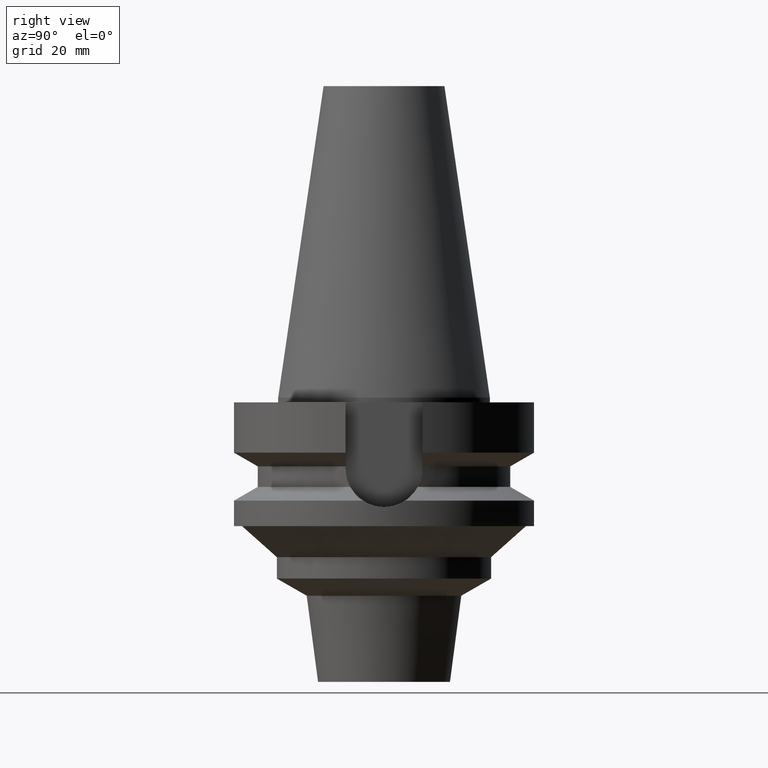
[diagram: clean part render]
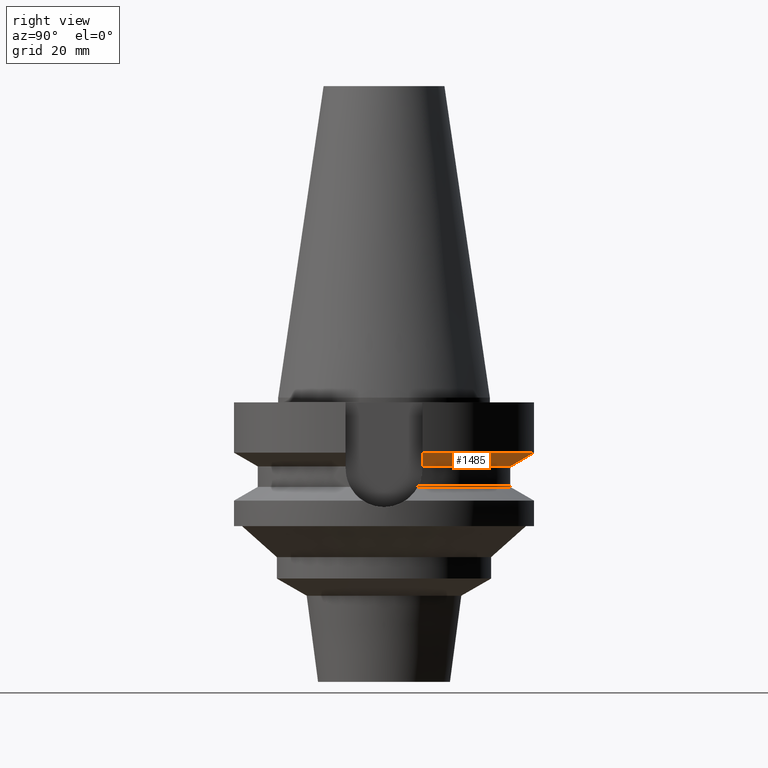
[diagram: same view with one face highlighted and labeled with its STEP entity id]
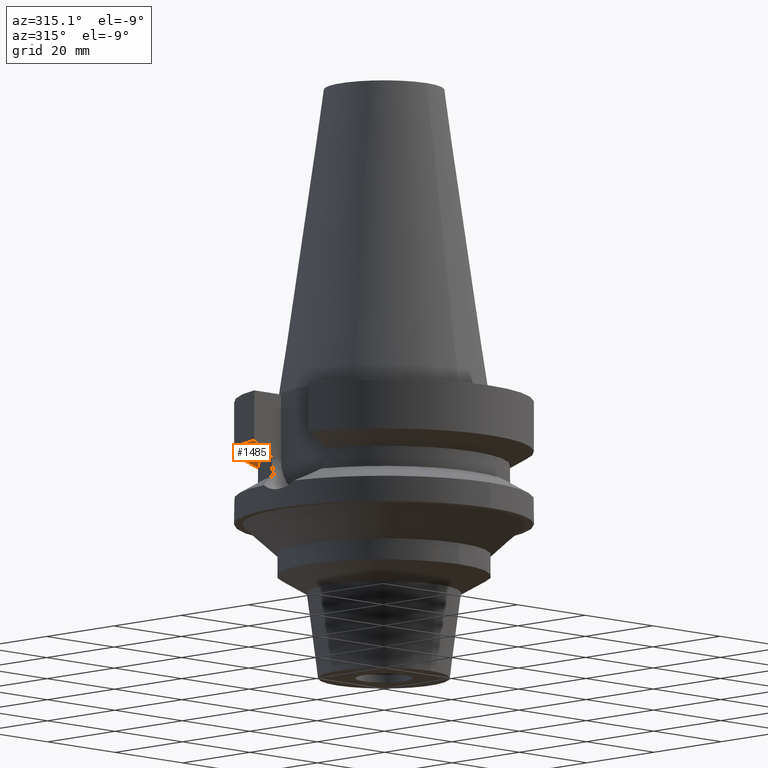
[diagram: same view with one face highlighted and labeled with its STEP entity id]
A machine part, right view. The second image highlights one B-rep face of the part: STEP entity #1485.
A second angle (auxiliary view) of the same face is appended — the face is thin or edge-on in the first view.
In plain terms, the highlighted conical surface has half-angle 60 deg.
Its self-contained STEP definition (entity closure, byte-faithful):
#344=CARTESIAN_POINT('',(3.045402291707E1,8.049999265011E0,-1.156551227255E1));
#345=CARTESIAN_POINT('',(2.987645782194E1,8.049999265011E0,-1.188789698077E1));
#346=CARTESIAN_POINT('',(2.872091079178E1,8.049999727161E0,-1.253193635376E1));
#347=CARTESIAN_POINT('',(2.698538552370E1,8.050002057420E0,-1.349404143995E1));
#348=CARTESIAN_POINT('',(2.582730548052E1,8.049995381246E0,-1.413348358110E1));
#349=CARTESIAN_POINT('',(2.524772414223E1,8.049995381246E0,-1.445229229194E1));
#388=CARTESIAN_POINT('',(-2.524772217128E1,8.050001562859E0,-1.445224505698E1));
#389=CARTESIAN_POINT('',(-2.582727373616E1,8.050001562859E0,-1.413345279819E1));
#390=CARTESIAN_POINT('',(-2.698547332388E1,8.049999825981E0,-1.349419099112E1));
#391=CARTESIAN_POINT('',(-2.872100077169E1,8.049998264778E0,-1.253209023092E1));
#392=CARTESIAN_POINT('',(-2.987642818392E1,8.050004164863E0,-1.188786862481E1));
#393=CARTESIAN_POINT('',(-3.045402162188E1,8.050004164863E0,-1.156546813736E1));
#398=CARTESIAN_POINT('',(0.E0,1.065333950388E-14,-1.445225699861E1));
#399=DIRECTION('',(0.E0,0.E0,-1.E0));
#400=DIRECTION('',(-9.527442516822E-1,3.037735849057E-1,0.E0));
#401=AXIS2_PLACEMENT_3D('',#398,#399,#400);
#406=CARTESIAN_POINT('',(0.E0,1.065333950388E-14,-1.445225699861E1));
#407=DIRECTION('',(0.E0,0.E0,-1.E0));
#408=DIRECTION('',(0.E0,1.E0,0.E0));
#409=AXIS2_PLACEMENT_3D('',#406,#407,#408);
#414=CARTESIAN_POINT('',(0.E0,1.065333950388E-14,-1.156550565267E1));
#415=DIRECTION('',(0.E0,0.E0,1.E0));
#416=DIRECTION('',(9.667943721520E-1,2.555555555555E-1,0.E0));
#417=AXIS2_PLACEMENT_3D('',#414,#415,#416);
#422=CARTESIAN_POINT('',(0.E0,1.065333950388E-14,-1.156550565267E1));
#423=DIRECTION('',(0.E0,0.E0,1.E0));
#424=DIRECTION('',(0.E0,1.E0,0.E0));
#425=AXIS2_PLACEMENT_3D('',#422,#423,#424);
#1140=CARTESIAN_POINT('',(-2.524772217128E1,8.050001562859E0,
-1.445224505698E1));
#1141=VERTEX_POINT('',#1140);
#1142=CARTESIAN_POINT('',(2.524772414223E1,8.049995381246E0,-1.445229229194E1));
#1143=VERTEX_POINT('',#1142);
#1144=CARTESIAN_POINT('',(0.E0,2.65E1,-1.445225699861E1));
#1145=VERTEX_POINT('',#1144);
#1176=VERTEX_POINT('',#393);
#1181=VERTEX_POINT('',#344);
#1182=CARTESIAN_POINT('',(0.E0,3.15E1,-1.156550565267E1));
#1183=VERTEX_POINT('',#1182);
#1470=CARTESIAN_POINT('',(0.E0,1.065333950388E-14,-1.300888132564E1));
#1471=DIRECTION('',(0.E0,0.E0,1.E0));
#1472=DIRECTION('',(0.E0,1.E0,0.E0));
#1473=AXIS2_PLACEMENT_3D('',#1470,#1471,#1472);
#1474=CONICAL_SURFACE('',#1473,2.9E1,6.E1);
#1475=ORIENTED_EDGE('',*,*,#1459,.F.);
#1476=ORIENTED_EDGE('',*,*,#1448,.T.);
#1477=ORIENTED_EDGE('',*,*,#1446,.T.);
#1478=ORIENTED_EDGE('',*,*,#1425,.F.);
#1480=ORIENTED_EDGE('',*,*,#1479,.T.);
#1482=ORIENTED_EDGE('',*,*,#1481,.T.);
#1483=EDGE_LOOP('',(#1475,#1476,#1477,#1478,#1480,#1482));
#1484=FACE_OUTER_BOUND('',#1483,.F.);
#350=B_SPLINE_CURVE_WITH_KNOTS('',3,(#344,#345,#346,#347,#348,#349),
.UNSPECIFIED.,.F.,.F.,(4,1,1,4),(0.E0,3.333333333333E-1,6.666666666667E-1,1.E0),
.UNSPECIFIED.);
#394=B_SPLINE_CURVE_WITH_KNOTS('',3,(#388,#389,#390,#391,#392,#393),
.UNSPECIFIED.,.F.,.F.,(4,1,1,4),(0.E0,3.333333333333E-1,6.666666666667E-1,1.E0),
.UNSPECIFIED.);
#402=CIRCLE('',#401,2.65E1);
#410=CIRCLE('',#409,2.65E1);
#418=CIRCLE('',#417,3.15E1);
#426=CIRCLE('',#425,3.15E1);
#1425=EDGE_CURVE('',#1181,#1143,#350,.T.);
#1446=EDGE_CURVE('',#1145,#1143,#410,.T.);
#1448=EDGE_CURVE('',#1141,#1145,#402,.T.);
#1459=EDGE_CURVE('',#1141,#1176,#394,.T.);
#1479=EDGE_CURVE('',#1181,#1183,#418,.T.);
#1481=EDGE_CURVE('',#1183,#1176,#426,.T.);
#1485=ADVANCED_FACE('',(#1484),#1474,.T.);